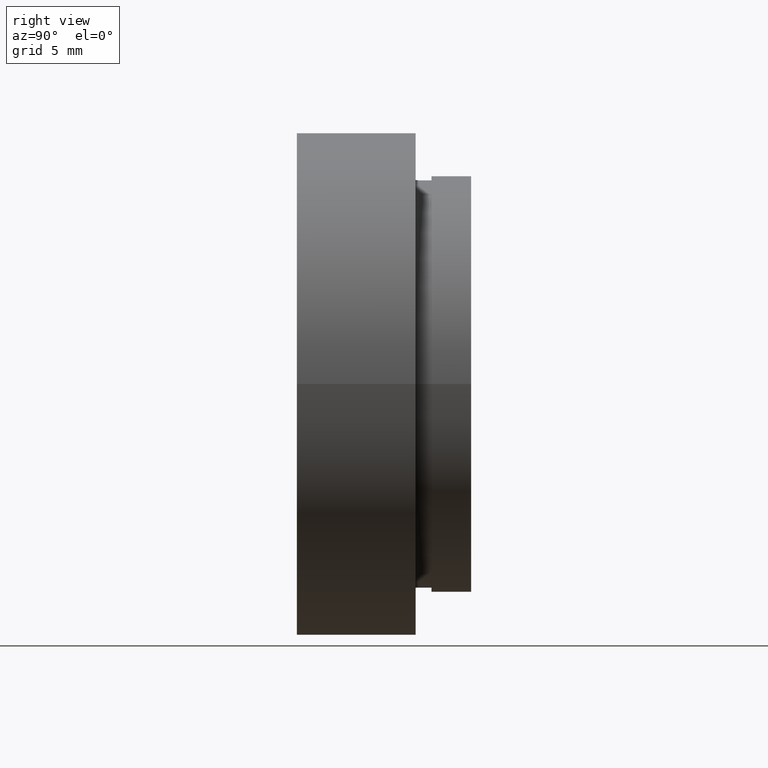
[diagram: clean part render]
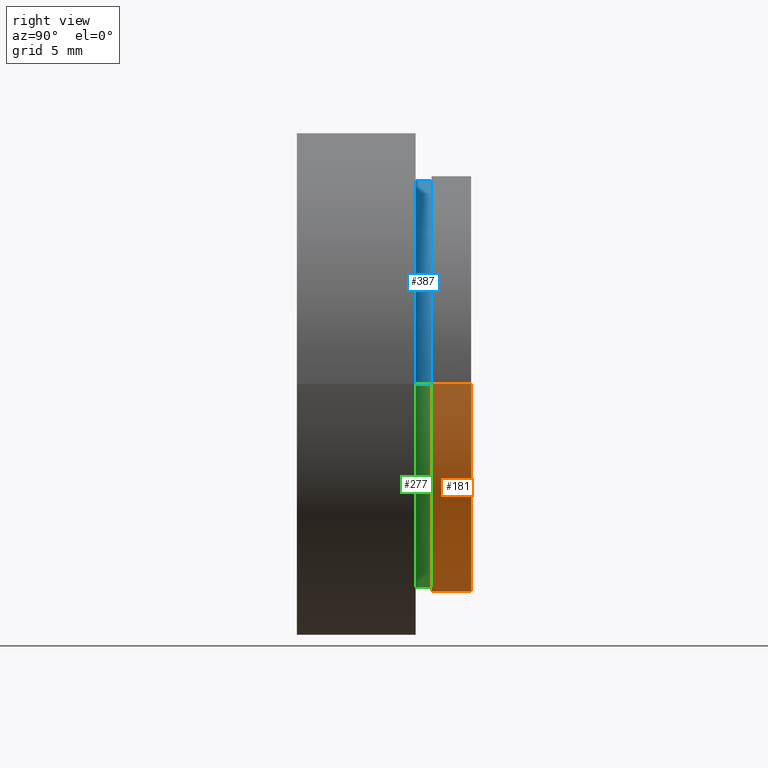
[diagram: same view with three faces highlighted in distinct colors, each labeled with its STEP entity id]
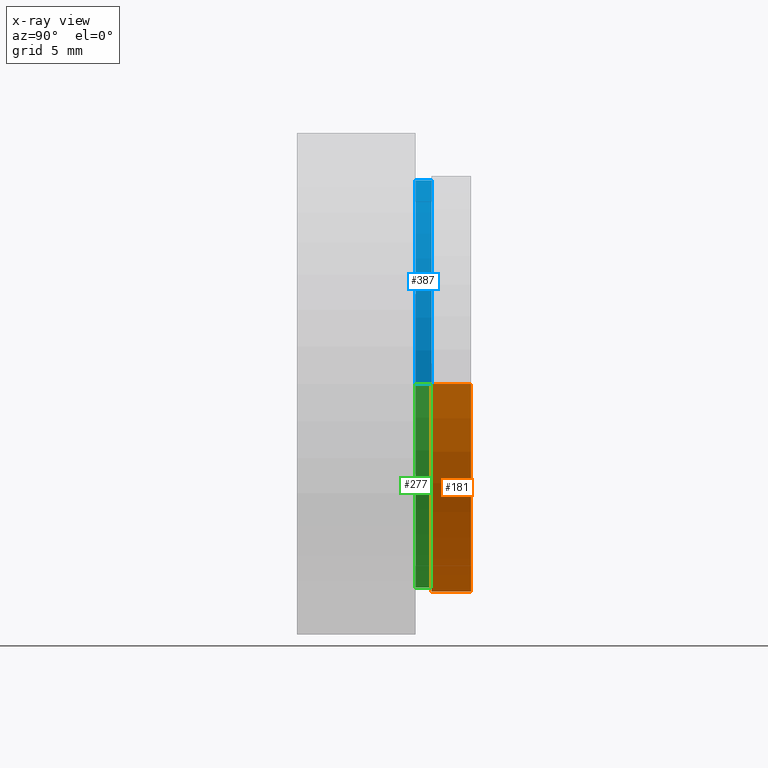
[diagram: x-ray of the same camera — body ghosted, the three highlighted faces saturated]
A machine part, right view with three faces highlighted in distinct colors.
The next image is the same camera in x-ray (body ghosted, the three faces saturated) — at least one of them is partly hidden behind the body in this view.
Their STEP definitions:

[orange] entity #181 — the highlighted cylindrical surface (partial cylindrical patch) has radius 13.16 mm, axis along (-0, 1, -0).
#2 = VECTOR ( 'NONE', #235, 1000.000000000000000 ) ;
#15 = VERTEX_POINT ( 'NONE', #344 ) ;
#30 = DIRECTION ( 'NONE',  ( -1.000000000000000000, -1.318178933113075200E-016, 0.0000000000000000000 ) ) ;
#34 = EDGE_CURVE ( 'NONE', #374, #433, #264, .T. ) ;
#48 = DIRECTION ( 'NONE',  ( -1.224646799147351000E-016, 1.000000000000000000, -0.0000000000000000000 ) ) ;
#72 = CIRCLE ( 'NONE', #575, 13.15999999999999800 ) ;
#74 = CARTESIAN_POINT ( 'NONE',  ( 13.16000000000000200, 8.500000000000000000, 1.611635187677917100E-015 ) ) ;
#94 = EDGE_CURVE ( 'NONE', #433, #240, #370, .T. ) ;
#134 = EDGE_CURVE ( 'NONE', #15, #240, #556, .T. ) ;
#181 = ADVANCED_FACE ( 'NONE', ( #399 ), #435, .T. ) ;
#190 = EDGE_LOOP ( 'NONE', ( #485, #343, #615, #218 ) ) ;
#198 = CARTESIAN_POINT ( 'NONE',  ( 1.026991039163387700E-015, 8.499999999999998200, 0.0000000000000000000 ) ) ;
#210 = AXIS2_PLACEMENT_3D ( 'NONE', #456, #48, #346 ) ;
#218 = ORIENTED_EDGE ( 'NONE', *, *, #94, .F. ) ;
#221 = DIRECTION ( 'NONE',  ( -1.224646799147351000E-016, 1.000000000000000000, -0.0000000000000000000 ) ) ;
#235 = DIRECTION ( 'NONE',  ( -1.224646799147351000E-016, 1.000000000000000000, -0.0000000000000000000 ) ) ;
#240 = VERTEX_POINT ( 'NONE', #603 ) ;
#252 = DIRECTION ( 'NONE',  ( -1.000000000000000000, -1.318178933113075500E-016, 0.0000000000000000000 ) ) ;
#264 = LINE ( 'NONE', #489, #2 ) ;
#283 = AXIS2_PLACEMENT_3D ( 'NONE', #617, #221, #30 ) ;
#285 = VECTOR ( 'NONE', #545, 1000.000000000000000 ) ;
#343 = ORIENTED_EDGE ( 'NONE', *, *, #573, .T. ) ;
#344 = CARTESIAN_POINT ( 'NONE',  ( -13.15999999999999700, 8.499999999999996400, 0.0000000000000000000 ) ) ;
#346 = DIRECTION ( 'NONE',  ( -1.000000000000000000, 0.0000000000000000000, 0.0000000000000000000 ) ) ;
#356 = DIRECTION ( 'NONE',  ( -1.224646799147351000E-016, 1.000000000000000000, -0.0000000000000000000 ) ) ;
#370 = CIRCLE ( 'NONE', #283, 13.16000000000000000 ) ;
#374 = VERTEX_POINT ( 'NONE', #74 ) ;
#399 = FACE_OUTER_BOUND ( 'NONE', #190, .T. ) ;
#431 = CARTESIAN_POINT ( 'NONE',  ( -13.15999999999999800, 16.88601823708207700, 0.0000000000000000000 ) ) ;
#433 = VERTEX_POINT ( 'NONE', #561 ) ;
#435 = CYLINDRICAL_SURFACE ( 'NONE', #210, 13.15999999999999800 ) ;
#456 = CARTESIAN_POINT ( 'NONE',  ( 0.0000000000000000000, 16.88601823708207700, 0.0000000000000000000 ) ) ;
#485 = ORIENTED_EDGE ( 'NONE', *, *, #34, .F. ) ;
#489 = CARTESIAN_POINT ( 'NONE',  ( 13.15999999999999800, 16.88601823708207700, 1.611635187677916700E-015 ) ) ;
#545 = DIRECTION ( 'NONE',  ( -1.224646799147351000E-016, 1.000000000000000000, -0.0000000000000000000 ) ) ;
#556 = LINE ( 'NONE', #431, #285 ) ;
#561 = CARTESIAN_POINT ( 'NONE',  ( 13.16000000000000200, 10.99999999999999800, 1.611635187677917100E-015 ) ) ;
#573 = EDGE_CURVE ( 'NONE', #374, #15, #72, .T. ) ;
#575 = AXIS2_PLACEMENT_3D ( 'NONE', #198, #356, #252 ) ;
#603 = CARTESIAN_POINT ( 'NONE',  ( -13.16000000000000000, 10.99999999999999500, 0.0000000000000000000 ) ) ;
#615 = ORIENTED_EDGE ( 'NONE', *, *, #134, .T. ) ;
#617 = CARTESIAN_POINT ( 'NONE',  ( 7.208293393765502500E-016, 10.99999999999999600, 0.0000000000000000000 ) ) ;

[blue] entity #387 — the highlighted cylindrical surface (partial cylindrical patch) has radius 12.9 mm, axis along (-0, 1, -0).
#10 = ORIENTED_EDGE ( 'NONE', *, *, #146, .T. ) ;
#11 = VERTEX_POINT ( 'NONE', #244 ) ;
#43 = ORIENTED_EDGE ( 'NONE', *, *, #511, .F. ) ;
#73 = CARTESIAN_POINT ( 'NONE',  ( 1.149455719078122700E-015, 7.499999999999998200, 0.0000000000000000000 ) ) ;
#91 = CYLINDRICAL_SURFACE ( 'NONE', #417, 12.90000000000000000 ) ;
#100 = CARTESIAN_POINT ( 'NONE',  ( 12.90000000000000000, 16.88601823708207700, 1.579794370900085700E-015 ) ) ;
#125 = EDGE_CURVE ( 'NONE', #219, #11, #217, .T. ) ;
#127 = EDGE_LOOP ( 'NONE', ( #524, #10, #234, #43 ) ) ;
#128 = DIRECTION ( 'NONE',  ( -1.000000000000000000, 0.0000000000000000000, 0.0000000000000000000 ) ) ;
#138 = VERTEX_POINT ( 'NONE', #241 ) ;
#143 = AXIS2_PLACEMENT_3D ( 'NONE', #208, #541, #192 ) ;
#145 = VECTOR ( 'NONE', #449, 1000.000000000000000 ) ;
#146 = EDGE_CURVE ( 'NONE', #11, #351, #437, .T. ) ;
#192 = DIRECTION ( 'NONE',  ( -1.000000000000000000, -1.344746880602176000E-016, 0.0000000000000000000 ) ) ;
#208 = CARTESIAN_POINT ( 'NONE',  ( 1.026991039163387700E-015, 8.499999999999998200, 0.0000000000000000000 ) ) ;
#217 = CIRCLE ( 'NONE', #464, 12.90000000000000000 ) ;
#219 = VERTEX_POINT ( 'NONE', #368 ) ;
#234 = ORIENTED_EDGE ( 'NONE', *, *, #491, .F. ) ;
#237 = VECTOR ( 'NONE', #358, 1000.000000000000000 ) ;
#241 = CARTESIAN_POINT ( 'NONE',  ( -12.89999999999999900, 8.499999999999996400, 0.0000000000000000000 ) ) ;
#244 = CARTESIAN_POINT ( 'NONE',  ( 12.90000000000000200, 7.500000000000000000, 1.579794370900085700E-015 ) ) ;
#292 = DIRECTION ( 'NONE',  ( -1.000000000000000000, -1.344746880602176000E-016, 0.0000000000000000000 ) ) ;
#300 = CIRCLE ( 'NONE', #143, 12.90000000000000000 ) ;
#328 = FACE_OUTER_BOUND ( 'NONE', #127, .T. ) ;
#341 = CARTESIAN_POINT ( 'NONE',  ( -12.90000000000000000, 16.88601823708207700, 0.0000000000000000000 ) ) ;
#351 = VERTEX_POINT ( 'NONE', #515 ) ;
#358 = DIRECTION ( 'NONE',  ( -1.224646799147351000E-016, 1.000000000000000000, -0.0000000000000000000 ) ) ;
#368 = CARTESIAN_POINT ( 'NONE',  ( -12.89999999999999900, 7.499999999999996400, 0.0000000000000000000 ) ) ;
#372 = DIRECTION ( 'NONE',  ( -1.224646799147351000E-016, 1.000000000000000000, -0.0000000000000000000 ) ) ;
#387 = ADVANCED_FACE ( 'NONE', ( #328 ), #91, .T. ) ;
#417 = AXIS2_PLACEMENT_3D ( 'NONE', #607, #372, #128 ) ;
#437 = LINE ( 'NONE', #100, #145 ) ;
#449 = DIRECTION ( 'NONE',  ( -1.224646799147351000E-016, 1.000000000000000000, -0.0000000000000000000 ) ) ;
#464 = AXIS2_PLACEMENT_3D ( 'NONE', #73, #520, #292 ) ;
#491 = EDGE_CURVE ( 'NONE', #138, #351, #300, .T. ) ;
#511 = EDGE_CURVE ( 'NONE', #219, #138, #623, .T. ) ;
#515 = CARTESIAN_POINT ( 'NONE',  ( 12.90000000000000200, 8.500000000000000000, 1.579794370900085700E-015 ) ) ;
#520 = DIRECTION ( 'NONE',  ( -1.224646799147351000E-016, 1.000000000000000000, -0.0000000000000000000 ) ) ;
#524 = ORIENTED_EDGE ( 'NONE', *, *, #125, .T. ) ;
#541 = DIRECTION ( 'NONE',  ( -1.224646799147351000E-016, 1.000000000000000000, -0.0000000000000000000 ) ) ;
#607 = CARTESIAN_POINT ( 'NONE',  ( 0.0000000000000000000, 16.88601823708207700, 0.0000000000000000000 ) ) ;
#623 = LINE ( 'NONE', #341, #237 ) ;

[green] entity #277 — the highlighted cylindrical surface (partial cylindrical patch) has radius 12.9 mm, axis along (-0, 1, -0).
#11 = VERTEX_POINT ( 'NONE', #244 ) ;
#20 = EDGE_LOOP ( 'NONE', ( #598, #274, #438, #618 ) ) ;
#87 = EDGE_CURVE ( 'NONE', #351, #138, #326, .T. ) ;
#100 = CARTESIAN_POINT ( 'NONE',  ( 12.90000000000000000, 16.88601823708207700, 1.579794370900085700E-015 ) ) ;
#120 = AXIS2_PLACEMENT_3D ( 'NONE', #428, #170, #609 ) ;
#138 = VERTEX_POINT ( 'NONE', #241 ) ;
#145 = VECTOR ( 'NONE', #449, 1000.000000000000000 ) ;
#146 = EDGE_CURVE ( 'NONE', #11, #351, #437, .T. ) ;
#166 = CARTESIAN_POINT ( 'NONE',  ( 1.149455719078122700E-015, 7.499999999999998200, 0.0000000000000000000 ) ) ;
#170 = DIRECTION ( 'NONE',  ( -1.224646799147351000E-016, 1.000000000000000000, -0.0000000000000000000 ) ) ;
#173 = CARTESIAN_POINT ( 'NONE',  ( 1.026991039163387700E-015, 8.499999999999998200, 0.0000000000000000000 ) ) ;
#219 = VERTEX_POINT ( 'NONE', #368 ) ;
#237 = VECTOR ( 'NONE', #358, 1000.000000000000000 ) ;
#241 = CARTESIAN_POINT ( 'NONE',  ( -12.89999999999999900, 8.499999999999996400, 0.0000000000000000000 ) ) ;
#244 = CARTESIAN_POINT ( 'NONE',  ( 12.90000000000000200, 7.500000000000000000, 1.579794370900085700E-015 ) ) ;
#257 = EDGE_CURVE ( 'NONE', #11, #219, #348, .T. ) ;
#267 = DIRECTION ( 'NONE',  ( -1.224646799147351000E-016, 1.000000000000000000, -0.0000000000000000000 ) ) ;
#274 = ORIENTED_EDGE ( 'NONE', *, *, #257, .T. ) ;
#277 = ADVANCED_FACE ( 'NONE', ( #404 ), #553, .T. ) ;
#311 = DIRECTION ( 'NONE',  ( -1.000000000000000000, -1.344746880602176000E-016, 0.0000000000000000000 ) ) ;
#326 = CIRCLE ( 'NONE', #482, 12.90000000000000000 ) ;
#341 = CARTESIAN_POINT ( 'NONE',  ( -12.90000000000000000, 16.88601823708207700, 0.0000000000000000000 ) ) ;
#348 = CIRCLE ( 'NONE', #583, 12.90000000000000000 ) ;
#351 = VERTEX_POINT ( 'NONE', #515 ) ;
#358 = DIRECTION ( 'NONE',  ( -1.224646799147351000E-016, 1.000000000000000000, -0.0000000000000000000 ) ) ;
#368 = CARTESIAN_POINT ( 'NONE',  ( -12.89999999999999900, 7.499999999999996400, 0.0000000000000000000 ) ) ;
#404 = FACE_OUTER_BOUND ( 'NONE', #20, .T. ) ;
#428 = CARTESIAN_POINT ( 'NONE',  ( 0.0000000000000000000, 16.88601823708207700, 0.0000000000000000000 ) ) ;
#429 = DIRECTION ( 'NONE',  ( -1.000000000000000000, -1.344746880602176000E-016, 0.0000000000000000000 ) ) ;
#437 = LINE ( 'NONE', #100, #145 ) ;
#438 = ORIENTED_EDGE ( 'NONE', *, *, #511, .T. ) ;
#449 = DIRECTION ( 'NONE',  ( -1.224646799147351000E-016, 1.000000000000000000, -0.0000000000000000000 ) ) ;
#482 = AXIS2_PLACEMENT_3D ( 'NONE', #173, #527, #429 ) ;
#511 = EDGE_CURVE ( 'NONE', #219, #138, #623, .T. ) ;
#515 = CARTESIAN_POINT ( 'NONE',  ( 12.90000000000000200, 8.500000000000000000, 1.579794370900085700E-015 ) ) ;
#527 = DIRECTION ( 'NONE',  ( -1.224646799147351000E-016, 1.000000000000000000, -0.0000000000000000000 ) ) ;
#553 = CYLINDRICAL_SURFACE ( 'NONE', #120, 12.90000000000000000 ) ;
#583 = AXIS2_PLACEMENT_3D ( 'NONE', #166, #267, #311 ) ;
#598 = ORIENTED_EDGE ( 'NONE', *, *, #146, .F. ) ;
#609 = DIRECTION ( 'NONE',  ( -1.000000000000000000, 0.0000000000000000000, 0.0000000000000000000 ) ) ;
#618 = ORIENTED_EDGE ( 'NONE', *, *, #87, .F. ) ;
#623 = LINE ( 'NONE', #341, #237 ) ;